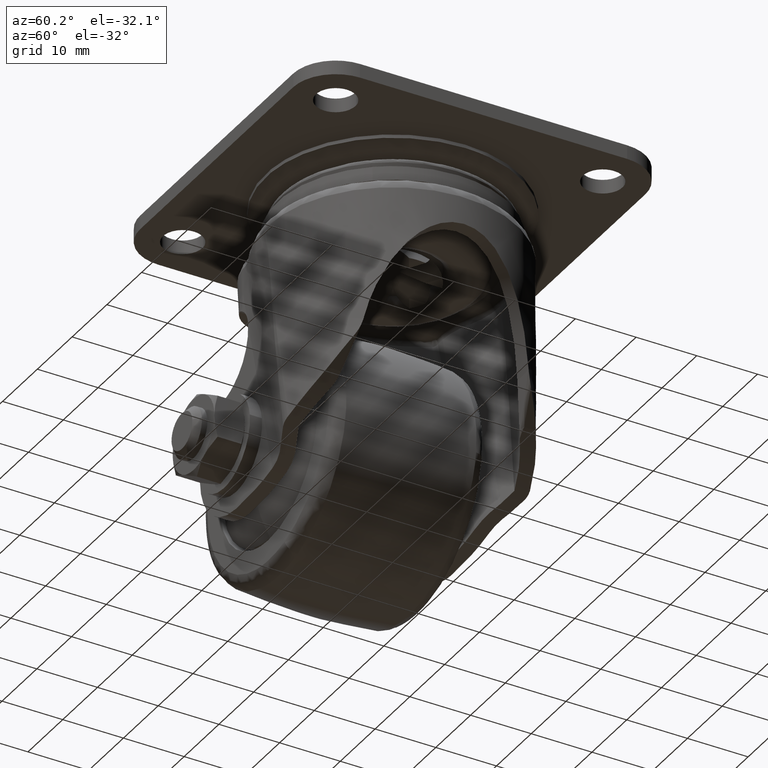
[diagram: clean part render]
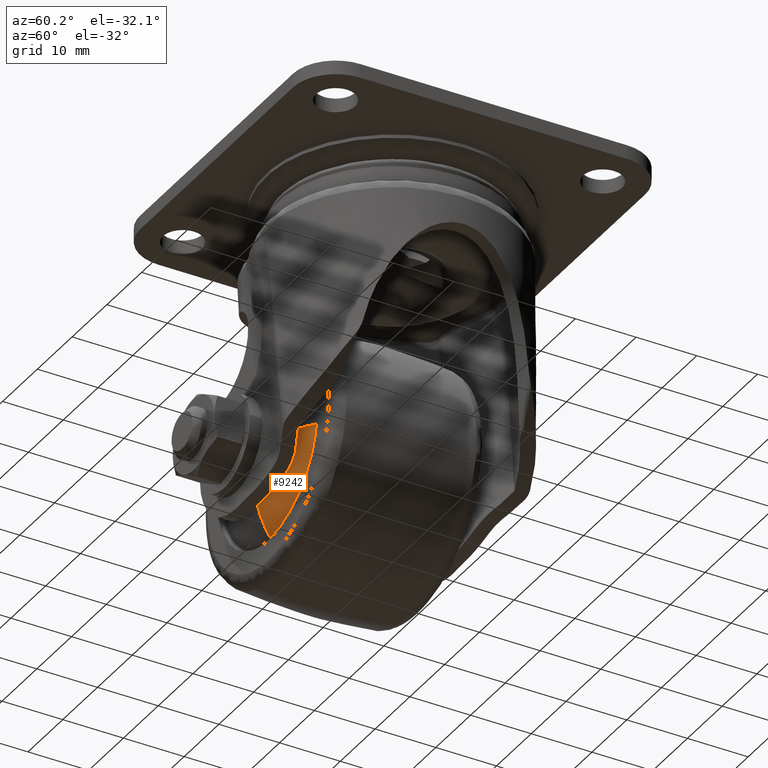
[diagram: same view with one face highlighted and labeled with its STEP entity id]
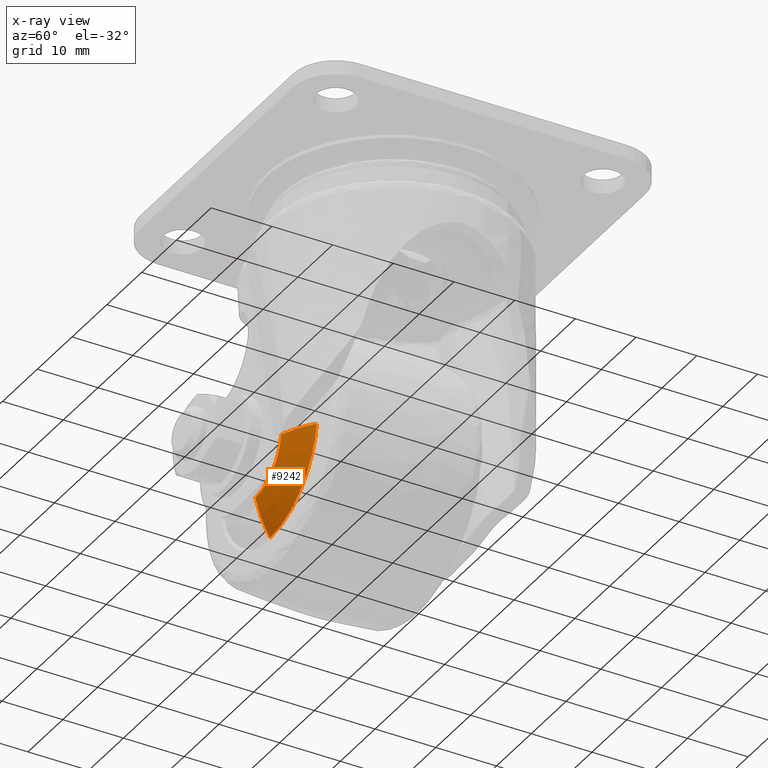
[diagram: x-ray of the same camera — body ghosted, the highlighted face saturated]
A machine part, auxiliary view. The second image highlights one B-rep face of the part: STEP entity #9242.
The next image is the same camera in x-ray: the body ghosted, the highlighted face saturated — about 0% of this face is hidden behind the body in this view.
In plain terms, the highlighted face is a freeform B-spline surface patch.
Its self-contained STEP definition (entity closure, byte-faithful):
#7897=CARTESIAN_POINT('',(13.409675991670900,-12.182793590311441,-41.558743749918747));
#7898=VERTEX_POINT('',#7897);
#7914=CARTESIAN_POINT('',(0.0,-12.182769035444821,-53.500006565186517));
#7915=VERTEX_POINT('',#7914);
#7916=CARTESIAN_POINT('',(0.0,-12.182769035444821,-53.500006565186517));
#7917=CARTESIAN_POINT('',(12.021638830865362,-12.182781312878129,-53.500001341703097));
#7918=CARTESIAN_POINT('',(13.409675991670893,-12.182793590311446,-41.558743749918762));
#7926=(BOUNDED_CURVE()B_SPLINE_CURVE(2,(#7916,#7917,#7918),.UNSPECIFIED.,.F.,.U.)B_SPLINE_CURVE_WITH_KNOTS((3,3),(0.0,0.230000245529099),.UNSPECIFIED.)CURVE()GEOMETRIC_REPRESENTATION_ITEM()RATIONAL_B_SPLINE_CURVE((1.0,0.730537951036392,0.956886601452015))REPRESENTATION_ITEM(''));
#7927=EDGE_CURVE('',#7915,#7898,#7926,.T.);
#8096=CARTESIAN_POINT('',(0.0,-14.618241481884580,-47.509080533641637));
#8097=VERTEX_POINT('',#8096);
#8111=CARTESIAN_POINT('',(7.458860093009480,-14.618240794113630,-40.867030546176750));
#8112=VERTEX_POINT('',#8111);
#8113=CARTESIAN_POINT('',(0.0,-14.618241481884580,-47.509080533641637));
#8114=CARTESIAN_POINT('',(6.686776586935596,-14.618241137999101,-47.509082044707753));
#8115=CARTESIAN_POINT('',(7.458860093009480,-14.618240794113632,-40.867030546176750));
#8123=(BOUNDED_CURVE()B_SPLINE_CURVE(2,(#8113,#8114,#8115),.UNSPECIFIED.,.F.,.U.)B_SPLINE_CURVE_WITH_KNOTS((3,3),(0.0,0.229999999981900),.UNSPECIFIED.)CURVE()GEOMETRIC_REPRESENTATION_ITEM()RATIONAL_B_SPLINE_CURVE((1.0,0.730538238712829,0.956886118155034))REPRESENTATION_ITEM(''));
#8124=EDGE_CURVE('',#8097,#8112,#8123,.T.);
#9180=CARTESIAN_POINT('',(0.0,-14.618241481884585,-47.509080533641630));
#9181=CARTESIAN_POINT('',(0.0,-13.891256796567301,-50.704047239213679));
#9182=CARTESIAN_POINT('',(0.0,-12.182769035444823,-53.500006565186524));
#9190=(BOUNDED_CURVE()B_SPLINE_CURVE(2,(#9180,#9181,#9182),.UNSPECIFIED.,.F.,.U.)B_SPLINE_CURVE_WITH_KNOTS((3,3),(0.110946488871639,0.202706852760419),.UNSPECIFIED.)CURVE()GEOMETRIC_REPRESENTATION_ITEM()RATIONAL_B_SPLINE_CURVE((0.928583646167967,0.913784296243747,0.923356615400687))REPRESENTATION_ITEM(''));
#9191=EDGE_CURVE('',#8097,#7915,#9190,.T.);
#9197=CARTESIAN_POINT('',(7.458860093009480,-14.618240794113625,-40.867030546176750));
#9198=CARTESIAN_POINT('',(10.632433766906734,-13.891261331126861,-41.235922267916180));
#9199=CARTESIAN_POINT('',(13.409675991670891,-12.182793590311441,-41.558743749918754));
#9207=(BOUNDED_CURVE()B_SPLINE_CURVE(2,(#9197,#9198,#9199),.UNSPECIFIED.,.F.,.U.)B_SPLINE_CURVE_WITH_KNOTS((3,3),(0.110946532981696,0.202706186447544),.UNSPECIFIED.)CURVE()GEOMETRIC_REPRESENTATION_ITEM()RATIONAL_B_SPLINE_CURVE((0.888548786982071,0.874387615330748,0.883546994393507))REPRESENTATION_ITEM(''));
#9208=EDGE_CURVE('',#8112,#7898,#9207,.T.);
#9213=CARTESIAN_POINT('',(-0.046678441034058,-14.687123446489117,-47.194684341829479));
#9214=CARTESIAN_POINT('',(-0.069590468291353,-13.943125665402613,-50.726181968910765));
#9215=CARTESIAN_POINT('',(-0.089370273331840,-12.011721982796670,-53.774901044712713));
#9216=CARTESIAN_POINT('',(-0.023370623377840,-14.687123446489123,-47.194684341829493));
#9217=CARTESIAN_POINT('',(-0.034842051043180,-13.943125665402610,-50.726181968910765));
#9218=CARTESIAN_POINT('',(-0.044745260401672,-12.011721982796667,-53.774901044712713));
#9219=CARTESIAN_POINT('',(6.406806696468713,-14.687123446489119,-47.194684341829500));
#9220=CARTESIAN_POINT('',(9.551576024874649,-13.943125665402610,-50.726181968910787));
#9221=CARTESIAN_POINT('',(12.266435060029066,-12.011721982796669,-53.774901044712728));
#9222=CARTESIAN_POINT('',(7.149384813685664,-14.687123446489123,-40.806459253960163));
#9223=CARTESIAN_POINT('',(10.658647250375392,-13.943125665402615,-41.202308301171293));
#9224=CARTESIAN_POINT('',(13.688170830028325,-12.011721982796674,-41.544042225078250));
#9225=CARTESIAN_POINT('',(7.152199274316219,-14.687123446489123,-40.782247110359300));
#9226=CARTESIAN_POINT('',(10.662843183849793,-13.943125665402613,-41.166211671245449));
#9227=CARTESIAN_POINT('',(13.693559380079751,-12.011721982796670,-41.497685794922830));
#9235=(BOUNDED_SURFACE()B_SPLINE_SURFACE(2,2,((#9213,#9216,#9219,#9222,#9225),(#9214,#9217,#9220,#9223,#9226),(#9215,#9218,#9221,#9224,#9227)),.UNSPECIFIED.,.F.,.F.,.U.)B_SPLINE_SURFACE_WITH_KNOTS((3,3),(3,1,1,3),(0.0,7.160196184574899),(0.0,0.104870769986990,21.079002845938899,21.183896006180721),.UNSPECIFIED.)GEOMETRIC_REPRESENTATION_ITEM()RATIONAL_B_SPLINE_SURFACE(((0.932629244453249,0.931376080347268,0.679490356997627,0.891074589357244,0.892127471952186),(0.914964975091531,0.913735546278491,0.666620611848542,0.874197377258864,0.875230317950983),(0.926864539057480,0.925619120925504,0.675290336731638,0.885566738811219,0.886613113398813)))REPRESENTATION_ITEM('')SURFACE());
#9236=ORIENTED_EDGE('',*,*,#7927,.T.);
#9237=ORIENTED_EDGE('',*,*,#9208,.F.);
#9238=ORIENTED_EDGE('',*,*,#8124,.F.);
#9239=ORIENTED_EDGE('',*,*,#9191,.T.);
#9240=EDGE_LOOP('',(#9236,#9237,#9238,#9239));
#9241=FACE_OUTER_BOUND('',#9240,.T.);
#9242=ADVANCED_FACE('',(#9241),#9235,.T.);